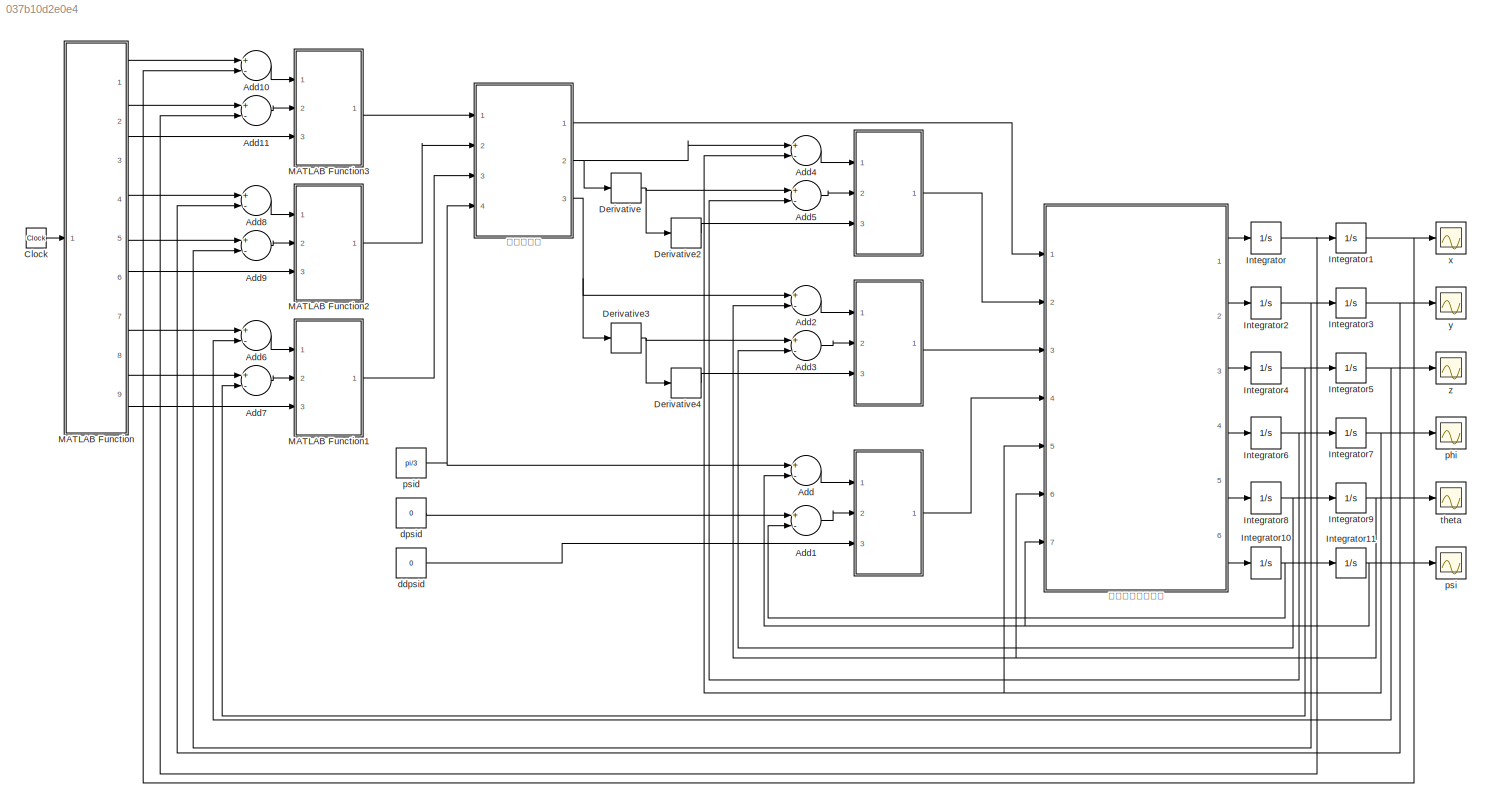
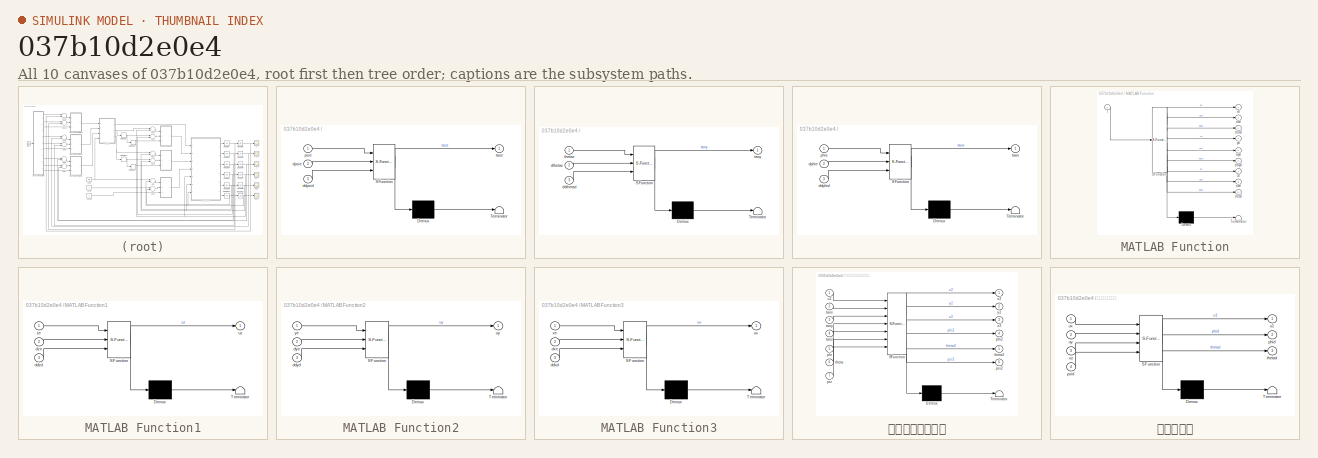
[diagram: thumbnail index - all 10 canvases of the model, root first then tree order]
MODEL slx_037b10d2e0e4
KIND model
CONFIG AbsTol = auto
CONFIG FixedStep = 0.001
CONFIG MaxStep = auto
CONFIG MinStep = auto
CONFIG RelTol = 1e-3
CONFIG SampleTimeConstraint = Unconstrained
CONFIG Solver = ode4
CONFIG SolverMode = Auto
CONFIG SolverName = ode4
CONFIG StartTime = 0.0
CONFIG StopTime = 10.0
BLOCK [SubSystem]  
  ErrorFcn = Stateflow.Translate.translate
  PermitHierarchicalResolution = ExplicitOnly
  Ports = [3, 1]
  RequestExecContextInheritance = off
  SFBlockType = MATLAB Function
  TreatAsAtomicUnit = on
  Variant = off
BLOCK [Demux]  / Demux 
  Outputs = 1
  Ports = [1, 1]
BLOCK [S-Function]  / SFunction 
  EnableBusSupport = on
  FunctionName = sf_sfun
  PortCounts = [3 2]
  Ports = [3, 2]
  SFunctionDeploymentMode = off
  Tag = Stateflow S-Function UAV 4
BLOCK [Terminator]  / Terminator 
BLOCK [Inport]  /ddphid
  IconDisplay = Port number
  Port = 3
BLOCK [Inport]  /ddpsid
  IconDisplay = Port number
  Port = 3
BLOCK [Inport]  /ddthetad
  IconDisplay = Port number
  Port = 3
BLOCK [Inport]  /dphie
  IconDisplay = Port number
  Port = 2
BLOCK [Inport]  /dpsie
  IconDisplay = Port number
  Port = 2
BLOCK [Inport]  /dthetae
  IconDisplay = Port number
  Port = 2
BLOCK [Inport]  /phie
  IconDisplay = Port number
BLOCK [Inport]  /psie
  IconDisplay = Port number
BLOCK [Outport]  /taox
  IconDisplay = Port number
BLOCK [Outport]  /taoy
  IconDisplay = Port number
BLOCK [Outport]  /taoz
  IconDisplay = Port number
BLOCK [Inport]  /thetae
  IconDisplay = Port number
BLOCK [Sum] Add
  InputSameDT = off
  Inputs = +-
  OutDataTypeStr = Inherit: Inherit via internal rule
  Ports = [2, 1]
  SaturateOnIntegerOverflow = off
BLOCK [Sum] Add1
  InputSameDT = off
  Inputs = +-
  OutDataTypeStr = Inherit: Inherit via internal rule
  Ports = [2, 1]
  SaturateOnIntegerOverflow = off
BLOCK [Sum] Add10
  InputSameDT = off
  Inputs = +-
  OutDataTypeStr = Inherit: Inherit via internal rule
  Ports = [2, 1]
  SaturateOnIntegerOverflow = off
BLOCK [Sum] Add11
  InputSameDT = off
  Inputs = +-
  OutDataTypeStr = Inherit: Inherit via internal rule
  Ports = [2, 1]
  SaturateOnIntegerOverflow = off
BLOCK [Sum] Add2
  InputSameDT = off
  Inputs = +-
  OutDataTypeStr = Inherit: Inherit via internal rule
  Ports = [2, 1]
  SaturateOnIntegerOverflow = off
BLOCK [Sum] Add3
  InputSameDT = off
  Inputs = +-
  OutDataTypeStr = Inherit: Inherit via internal rule
  Ports = [2, 1]
  SaturateOnIntegerOverflow = off
BLOCK [Sum] Add4
  InputSameDT = off
  Inputs = +-
  OutDataTypeStr = Inherit: Inherit via internal rule
  Ports = [2, 1]
  SaturateOnIntegerOverflow = off
BLOCK [Sum] Add5
  InputSameDT = off
  Inputs = +-
  OutDataTypeStr = Inherit: Inherit via internal rule
  Ports = [2, 1]
  SaturateOnIntegerOverflow = off
BLOCK [Sum] Add6
  InputSameDT = off
  Inputs = +-
  OutDataTypeStr = Inherit: Inherit via internal rule
  Ports = [2, 1]
  SaturateOnIntegerOverflow = off
BLOCK [Sum] Add7
  InputSameDT = off
  Inputs = +-
  OutDataTypeStr = Inherit: Inherit via internal rule
  Ports = [2, 1]
  SaturateOnIntegerOverflow = off
BLOCK [Sum] Add8
  InputSameDT = off
  Inputs = +-
  OutDataTypeStr = Inherit: Inherit via internal rule
  Ports = [2, 1]
  SaturateOnIntegerOverflow = off
BLOCK [Sum] Add9
  InputSameDT = off
  Inputs = +-
  OutDataTypeStr = Inherit: Inherit via internal rule
  Ports = [2, 1]
  SaturateOnIntegerOverflow = off
BLOCK [Clock] Clock
BLOCK [Derivative] Derivative
BLOCK [Derivative] Derivative2
BLOCK [Derivative] Derivative3
BLOCK [Derivative] Derivative4
BLOCK [Integrator] Integrator
  Ports = [1, 1]
BLOCK [Integrator] Integrator1
  Ports = [1, 1]
BLOCK [Integrator] Integrator10
  Ports = [1, 1]
BLOCK [Integrator] Integrator11
  Ports = [1, 1]
BLOCK [Integrator] Integrator2
  Ports = [1, 1]
BLOCK [Integrator] Integrator3
  Ports = [1, 1]
BLOCK [Integrator] Integrator4
  Ports = [1, 1]
BLOCK [Integrator] Integrator5
  Ports = [1, 1]
BLOCK [Integrator] Integrator6
  Ports = [1, 1]
BLOCK [Integrator] Integrator7
  Ports = [1, 1]
BLOCK [Integrator] Integrator8
  Ports = [1, 1]
BLOCK [Integrator] Integrator9
  Ports = [1, 1]
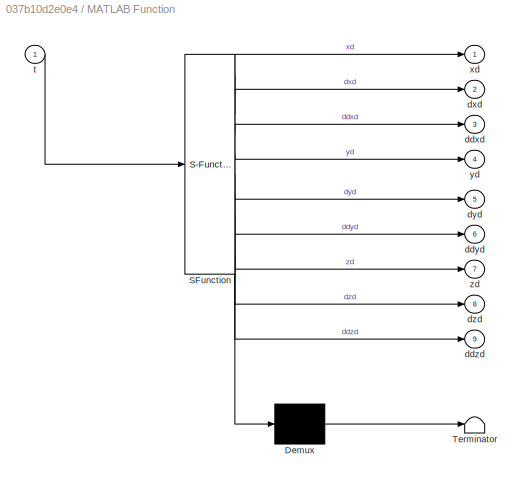
BLOCK [SubSystem] MATLAB Function
  ErrorFcn = Stateflow.Translate.translate
  PermitHierarchicalResolution = ExplicitOnly
  Ports = [1, 9]
  RequestExecContextInheritance = off
  SFBlockType = MATLAB Function
  TreatAsAtomicUnit = on
  Variant = off
BLOCK [Demux] MATLAB Function/ Demux 
  Outputs = 1
  Ports = [1, 1]
BLOCK [S-Function] MATLAB Function/ SFunction 
  EnableBusSupport = on
  FunctionName = sf_sfun
  PortCounts = [1 10]
  Ports = [1, 10]
  SFunctionDeploymentMode = off
  Tag = Stateflow S-Function UAV 6
BLOCK [Terminator] MATLAB Function/ Terminator 
BLOCK [Outport] MATLAB Function/ddxd
  IconDisplay = Port number
  Port = 3
BLOCK [Outport] MATLAB Function/ddyd
  IconDisplay = Port number
  Port = 6
BLOCK [Outport] MATLAB Function/ddzd
  IconDisplay = Port number
  Port = 9
BLOCK [Outport] MATLAB Function/dxd
  IconDisplay = Port number
  Port = 2
BLOCK [Outport] MATLAB Function/dyd
  IconDisplay = Port number
  Port = 5
BLOCK [Outport] MATLAB Function/dzd
  IconDisplay = Port number
  Port = 8
BLOCK [Inport] MATLAB Function/t
  IconDisplay = Port number
BLOCK [Outport] MATLAB Function/xd
  IconDisplay = Port number
BLOCK [Outport] MATLAB Function/yd
  IconDisplay = Port number
  Port = 4
BLOCK [Outport] MATLAB Function/zd
  IconDisplay = Port number
  Port = 7
BLOCK [SubSystem] MATLAB Function1
  ErrorFcn = Stateflow.Translate.translate
  PermitHierarchicalResolution = ExplicitOnly
  Ports = [3, 1]
  RequestExecContextInheritance = off
  SFBlockType = MATLAB Function
  TreatAsAtomicUnit = on
  Variant = off
BLOCK [Demux] MATLAB Function1/ Demux 
  Outputs = 1
  Ports = [1, 1]
BLOCK [S-Function] MATLAB Function1/ SFunction 
  EnableBusSupport = on
  FunctionName = sf_sfun
  PortCounts = [3 2]
  Ports = [3, 2]
  SFunctionDeploymentMode = off
  Tag = Stateflow S-Function UAV 7
BLOCK [Terminator] MATLAB Function1/ Terminator 
BLOCK [Inport] MATLAB Function1/ddzd
  IconDisplay = Port number
  Port = 3
BLOCK [Inport] MATLAB Function1/dze
  IconDisplay = Port number
  Port = 2
BLOCK [Outport] MATLAB Function1/uz
  IconDisplay = Port number
BLOCK [Inport] MATLAB Function1/ze
  IconDisplay = Port number
BLOCK [SubSystem] MATLAB Function2
  ErrorFcn = Stateflow.Translate.translate
  PermitHierarchicalResolution = ExplicitOnly
  Ports = [3, 1]
  RequestExecContextInheritance = off
  SFBlockType = MATLAB Function
  TreatAsAtomicUnit = on
  Variant = off
BLOCK [Demux] MATLAB Function2/ Demux 
  Outputs = 1
  Ports = [1, 1]
BLOCK [S-Function] MATLAB Function2/ SFunction 
  EnableBusSupport = on
  FunctionName = sf_sfun
  PortCounts = [3 2]
  Ports = [3, 2]
  SFunctionDeploymentMode = off
  Tag = Stateflow S-Function UAV 8
BLOCK [Terminator] MATLAB Function2/ Terminator 
BLOCK [Inport] MATLAB Function2/ddyd
  IconDisplay = Port number
  Port = 3
BLOCK [Inport] MATLAB Function2/dye
  IconDisplay = Port number
  Port = 2
BLOCK [Outport] MATLAB Function2/uy
  IconDisplay = Port number
BLOCK [Inport] MATLAB Function2/ye
  IconDisplay = Port number
BLOCK [SubSystem] MATLAB Function3
  ErrorFcn = Stateflow.Translate.translate
  PermitHierarchicalResolution = ExplicitOnly
  Ports = [3, 1]
  RequestExecContextInheritance = off
  SFBlockType = MATLAB Function
  TreatAsAtomicUnit = on
  Variant = off
BLOCK [Demux] MATLAB Function3/ Demux 
  Outputs = 1
  Ports = [1, 1]
BLOCK [S-Function] MATLAB Function3/ SFunction 
  EnableBusSupport = on
  FunctionName = sf_sfun
  PortCounts = [3 2]
  Ports = [3, 2]
  SFunctionDeploymentMode = off
  Tag = Stateflow S-Function UAV 9
BLOCK [Terminator] MATLAB Function3/ Terminator 
BLOCK [Inport] MATLAB Function3/ddxd
  IconDisplay = Port number
  Port = 3
BLOCK [Inport] MATLAB Function3/dxe
  IconDisplay = Port number
  Port = 2
BLOCK [Outport] MATLAB Function3/ux
  IconDisplay = Port number
BLOCK [Inport] MATLAB Function3/xe
  IconDisplay = Port number
BLOCK [Constant] ddpsid
  Value = 0
BLOCK [Constant] dpsid
  Value = 0
BLOCK [Scope] phi
  Ports = [1]
  ScopeSpecificationString = Simulink.scopes.TimeScopeBlockCfg('CurrentConfiguration', extmgr.ConfigurationSet(extmgr.Configuration('Core','General UI',true),extmgr.Configuration('Core','Source UI',true),extmgr.Configuration('Sources','WiredSimulink',true,'DataLoggingVariableName','ScopeData3','DataLoggingLimitDataPoints',true,'DataLoggingSaveFormat','Array','DataLoggingDecimation','1','DataLoggingDecimateData',true),extmgr.C...<+1499ch>
BLOCK [Scope] psi
  Ports = [1]
  ScopeSpecificationString = Simulink.scopes.TimeScopeBlockCfg('CurrentConfiguration', extmgr.ConfigurationSet(extmgr.Configuration('Core','General UI',true),extmgr.Configuration('Core','Source UI',true),extmgr.Configuration('Sources','WiredSimulink',true,'DataLoggingVariableName','ScopeData5','DataLoggingLimitDataPoints',true,'DataLoggingSaveFormat','Array','DataLoggingDecimation','1','DataLoggingDecimateData',true),extmgr.C...<+1584ch>
BLOCK [Constant] psid
  Value = pi/3
BLOCK [Scope] theta
  Ports = [1]
  ScopeSpecificationString = Simulink.scopes.TimeScopeBlockCfg('CurrentConfiguration', extmgr.ConfigurationSet(extmgr.Configuration('Core','General UI',true),extmgr.Configuration('Core','Source UI',true),extmgr.Configuration('Sources','WiredSimulink',true,'DataLoggingVariableName','ScopeData4','DataLoggingLimitDataPoints',true,'DataLoggingSaveFormat','Array','DataLoggingDecimation','1','DataLoggingDecimateData',true),extmgr.C...<+1537ch>
BLOCK [Scope] x
  Ports = [1]
  ScopeSpecificationString = Simulink.scopes.TimeScopeBlockCfg('CurrentConfiguration', extmgr.ConfigurationSet(extmgr.Configuration('Core','General UI',true),extmgr.Configuration('Core','Source UI',true),extmgr.Configuration('Sources','WiredSimulink',true,'DataLoggingLimitDataPoints',true,'DataLoggingSaveFormat','Array','DataLoggingDecimation','1','DataLoggingDecimateData',true),extmgr.Configuration('Visuals','Time Domain',tr...<+1570ch>
BLOCK [Scope] y
  Ports = [1]
  ScopeSpecificationString = Simulink.scopes.TimeScopeBlockCfg('CurrentConfiguration', extmgr.ConfigurationSet(extmgr.Configuration('Core','General UI',true),extmgr.Configuration('Core','Source UI',true),extmgr.Configuration('Sources','WiredSimulink',true,'DataLoggingVariableName','ScopeData1','DataLoggingLimitDataPoints',true,'DataLoggingSaveFormat','Array','DataLoggingDecimation','1','DataLoggingDecimateData',true),extmgr.C...<+1629ch>
BLOCK [Scope] z
  Ports = [1]
  ScopeSpecificationString = Simulink.scopes.TimeScopeBlockCfg('CurrentConfiguration', extmgr.ConfigurationSet(extmgr.Configuration('Core','General UI',true),extmgr.Configuration('Core','Source UI',true),extmgr.Configuration('Sources','WiredSimulink',true,'DataLoggingVariableName','ScopeData2','DataLoggingLimitDataPoints',true,'DataLoggingSaveFormat','Array','DataLoggingDecimation','1','DataLoggingDecimateData',true),extmgr.C...<+1613ch>
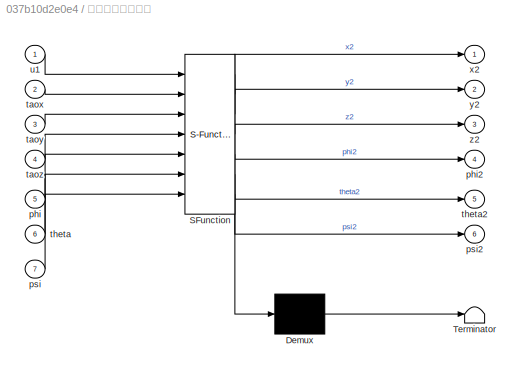
BLOCK [SubSystem] 四旋翼无人机模型
  ErrorFcn = Stateflow.Translate.translate
  PermitHierarchicalResolution = ExplicitOnly
  Ports = [7, 6]
  RequestExecContextInheritance = off
  SFBlockType = MATLAB Function
  TreatAsAtomicUnit = on
  Variant = off
BLOCK [Demux] 四旋翼无人机模型/ Demux 
  Outputs = 1
  Ports = [1, 1]
BLOCK [S-Function] 四旋翼无人机模型/ SFunction 
  EnableBusSupport = on
  FunctionName = sf_sfun
  PortCounts = [7 7]
  Ports = [7, 7]
  SFunctionDeploymentMode = off
  Tag = Stateflow S-Function UAV 2
BLOCK [Terminator] 四旋翼无人机模型/ Terminator 
BLOCK [Inport] 四旋翼无人机模型/phi
  IconDisplay = Port number
  Port = 5
BLOCK [Outport] 四旋翼无人机模型/phi2
  IconDisplay = Port number
  Port = 4
BLOCK [Inport] 四旋翼无人机模型/psi
  IconDisplay = Port number
  Port = 7
BLOCK [Outport] 四旋翼无人机模型/psi2
  IconDisplay = Port number
  Port = 6
BLOCK [Inport] 四旋翼无人机模型/taox
  IconDisplay = Port number
  Port = 2
BLOCK [Inport] 四旋翼无人机模型/taoy
  IconDisplay = Port number
  Port = 3
BLOCK [Inport] 四旋翼无人机模型/taoz
  IconDisplay = Port number
  Port = 4
BLOCK [Inport] 四旋翼无人机模型/theta
  IconDisplay = Port number
  Port = 6
BLOCK [Outport] 四旋翼无人机模型/theta2
  IconDisplay = Port number
  Port = 5
BLOCK [Inport] 四旋翼无人机模型/u1
  IconDisplay = Port number
BLOCK [Outport] 四旋翼无人机模型/x2
  IconDisplay = Port number
BLOCK [Outport] 四旋翼无人机模型/y2
  IconDisplay = Port number
  Port = 2
BLOCK [Outport] 四旋翼无人机模型/z2
  IconDisplay = Port number
  Port = 3
BLOCK [SubSystem] 姿态解算器
  ErrorFcn = Stateflow.Translate.translate
  PermitHierarchicalResolution = ExplicitOnly
  Ports = [4, 3]
  RequestExecContextInheritance = off
  SFBlockType = MATLAB Function
  TreatAsAtomicUnit = on
  Variant = off
BLOCK [Demux] 姿态解算器/ Demux 
  Outputs = 1
  Ports = [1, 1]
BLOCK [S-Function] 姿态解算器/ SFunction 
  EnableBusSupport = on
  FunctionName = sf_sfun
  PortCounts = [4 4]
  Ports = [4, 4]
  SFunctionDeploymentMode = off
  Tag = Stateflow S-Function UAV 5
BLOCK [Terminator] 姿态解算器/ Terminator 
BLOCK [Outport] 姿态解算器/phid
  IconDisplay = Port number
  Port = 2
BLOCK [Inport] 姿态解算器/psid
  IconDisplay = Port number
  Port = 4
BLOCK [Outport] 姿态解算器/thetad
  IconDisplay = Port number
  Port = 3
BLOCK [Outport] 姿态解算器/u1
  IconDisplay = Port number
BLOCK [Inport] 姿态解算器/ux
  IconDisplay = Port number
BLOCK [Inport] 姿态解算器/uy
  IconDisplay = Port number
  Port = 2
BLOCK [Inport] 姿态解算器/uz
  IconDisplay = Port number
  Port = 3
NET  :1 -> 四旋翼无人机模型:2, 四旋翼无人机模型:3, 四旋翼无人机模型:4
LINE Add10:1 -> MATLAB Function3:1
LINE Add11:1 -> MATLAB Function3:2
LINE Add1:1 ->  :2
LINE Add2:1 ->  :1
LINE Add3:1 ->  :2
LINE Add4:1 ->  :1
LINE Add5:1 ->  :2
LINE Add6:1 -> MATLAB Function1:1
LINE Add7:1 -> MATLAB Function1:2
LINE Add8:1 -> MATLAB Function2:1
LINE Add9:1 -> MATLAB Function2:2
LINE Add:1 ->  :1
LINE Clock:1 -> MATLAB Function:1
LINE Derivative2:1 ->  :3
NET Derivative3:1 -> Add3:1, Derivative4:1
LINE Derivative4:1 ->  :3
NET Derivative:1 -> Add5:1, Derivative2:1
NET Integrator10:1 -> Add1:2, Integrator11:1
NET Integrator11:1 -> Add:2, psi:1, 四旋翼无人机模型:7
NET Integrator1:1 -> Add10:2, x:1
NET Integrator2:1 -> Add9:2, Integrator3:1
NET Integrator3:1 -> Add8:2, y:1
NET Integrator4:1 -> Add7:2, Integrator5:1
NET Integrator5:1 -> Add6:2, z:1
NET Integrator6:1 -> Add5:2, Integrator7:1
NET Integrator7:1 -> Add4:2, phi:1, 四旋翼无人机模型:5
NET Integrator8:1 -> Add3:2, Integrator9:1
NET Integrator9:1 -> Add2:2, theta:1, 四旋翼无人机模型:6
NET Integrator:1 -> Add11:2, Integrator1:1
LINE MATLAB Function1:1 -> 姿态解算器:3
LINE MATLAB Function2:1 -> 姿态解算器:2
LINE MATLAB Function3:1 -> 姿态解算器:1
LINE MATLAB Function:1 -> Add10:1
LINE MATLAB Function:2 -> Add11:1
LINE MATLAB Function:3 -> MATLAB Function3:3
LINE MATLAB Function:4 -> Add8:1
LINE MATLAB Function:5 -> Add9:1
LINE MATLAB Function:6 -> MATLAB Function2:3
LINE MATLAB Function:7 -> Add6:1
LINE MATLAB Function:8 -> Add7:1
LINE MATLAB Function:9 -> MATLAB Function1:3
LINE ddpsid:1 ->  :3
LINE dpsid:1 -> Add1:1
NET psid:1 -> Add:1, 姿态解算器:4
LINE 四旋翼无人机模型:1 -> Integrator:1
LINE 四旋翼无人机模型:2 -> Integrator2:1
LINE 四旋翼无人机模型:3 -> Integrator4:1
LINE 四旋翼无人机模型:4 -> Integrator6:1
LINE 四旋翼无人机模型:5 -> Integrator8:1
LINE 四旋翼无人机模型:6 -> Integrator10:1
LINE 姿态解算器:1 -> 四旋翼无人机模型:1
NET 姿态解算器:2 -> Add4:1, Derivative:1
NET 姿态解算器:3 -> Add2:1, Derivative3:1
note: NET lines group one-source signal fan-out (src -> all destinations, sorted); 1:1 wires keep LINE
CHART 
 states=1 transitions=1
  STATE_LABEL 'eML_blk_kernel()'
  STATE_LABEL 'SCRIPT:\nfunction taoz = fcn(psie, dpsie, ddpsid)\n%#codegen\n%%定义参数\nJzz = 0.0186;\nkppsi = 36;\nkdpsi = 12;\n\n%%控制率\ntaoz = Jzz*(kppsi*psie+kdpsi*dpsie+ddpsid);\nend'
CHART 四旋翼无人机模型 states=1 transitions=1
  STATE_LABEL 'eML_blk_kernel()'
  STATE_LABEL 'SCRIPT:\nfunction [x2, y2, z2, phi2, theta2, psi2]= fcn(u1, taox, taoy, taoz, phi, theta, psi)\n%#codegen\n%%四旋翼无人机相关参数\nm = 1.023 ;\ng = 9.81;\nJxx = 0.0095 ;\nJyy = 0.0095 ;\nJzz = 0.0186 ;\n%%搭建无人机位置环模型\nx2 = u1/m + (sin(phi)*sin(psi)+cos(phi)*sin(theta)*cos(psi));\ny2 = u1/m + (cos(phi)*sin(theta)*sin(psi)-sin(phi)*cos(psi));\nz2 = u1/m*cos(phi)*cos(theta)-g;\n\n%%姿态环模型\nphi2 = taox/Jxx;\ntheta2 = taoy/Jyy;\np...<+20ch>'
CHART 

 states=1 transitions=1
  STATE_LABEL 'eML_blk_kernel()'
  STATE_LABEL 'SCRIPT:\nfunction taoy = fcn(thetae, dthetae, ddthetad)\n%#codegen\n%%定义参数\nJyy = 0.0095;\nkptheta = 169;\nkdtheta = 26;\n\n%%控制率\ntaoy = Jyy*(kptheta*thetae+kdtheta*dthetae+ddthetad);\nend'
CHART 


 states=1 transitions=1
  STATE_LABEL 'eML_blk_kernel()'
  STATE_LABEL 'SCRIPT:\nfunction taox = fcn(phie, dphie, ddphid)\n%#codegen\n%%定义参数\nJxx = 0.0095;\nkpphi = 169;\nkdphi = 26;\n\n%%控制率\ntaox = Jxx*(kpphi*phie+kdphi*dphie+ddphid);\nend'
CHART 姿态解算器 states=1 transitions=1
  STATE_LABEL 'eML_blk_kernel()'
  STATE_LABEL 'SCRIPT:\nfunction [u1, phid, thetad] = fcn(ux, uy, uz, psid)\n%#codegen\n%\nthetad = atan((cos(psid)*ux+sin(psid)*uy)/uz);\nphid = atan((sin(psid)*ux-cos(psid)*uy)/(sqrt((cos(psid)*ux+sin(psid)*uy)^2)+uz^2));\nu1 = uz/(cos(phid)*cos(thetad));\n\nend'
CHART MATLAB Function states=1 transitions=1
  STATE_LABEL 'eML_blk_kernel()'
  STATE_LABEL 'SCRIPT:\nfunction [xd, dxd, ddxd, yd, dyd, ddyd, zd, dzd, ddzd] = fcn(t)\n%#codegen\nxd = cos(0.5*t);\ndxd = -0.5*sin(0.5*t);\nddxd = -0.25*cos(0.5*t);\n\nyd = sin(0.5*t);\ndyd = 0.5*cos(0.5*t);\nddyd = -0.25*sin(0.5*t);\n\nzd = 1;\ndzd = 0;\nddzd = 0;\n\nend'
CHART MATLAB Function1 states=1 transitions=1
  STATE_LABEL 'eML_blk_kernel()'
  STATE_LABEL 'SCRIPT:\nfunction uz = fcn(ze, dze, ddzd)\n%%相关参数\nm = 1.023;\ng = 9.81;\nkpz = 25;\nkdz = 10;\n\n%%控制率\nuz = m*(kpz*ze+kdz*dze+g+ddzd);\nend\n'
CHART MATLAB Function2 states=1 transitions=1
  STATE_LABEL 'eML_blk_kernel()'
  STATE_LABEL 'SCRIPT:\nfunction uy = fcn(ye, dye, ddyd)\n%%相关参数\nm = 1.023;\ng = 9.81;\nkpy = 10/3;\nkdy = 25/9;\n\n%%控制率\nuy = m*(kpy*ye+kdy*dye+ddyd);\nend\n'
CHART MATLAB Function3 states=1 transitions=1
  STATE_LABEL 'eML_blk_kernel()'
  STATE_LABEL 'SCRIPT:\nfunction ux = fcn(xe, dxe, ddxd)\n%%相关参数\nm = 1.023;\nkpx = 10/3;\nkdx = 25/9;\n\n%%控制率\nux = m*(kpx*xe+kdx*dxe+ddxd);\n\n'
